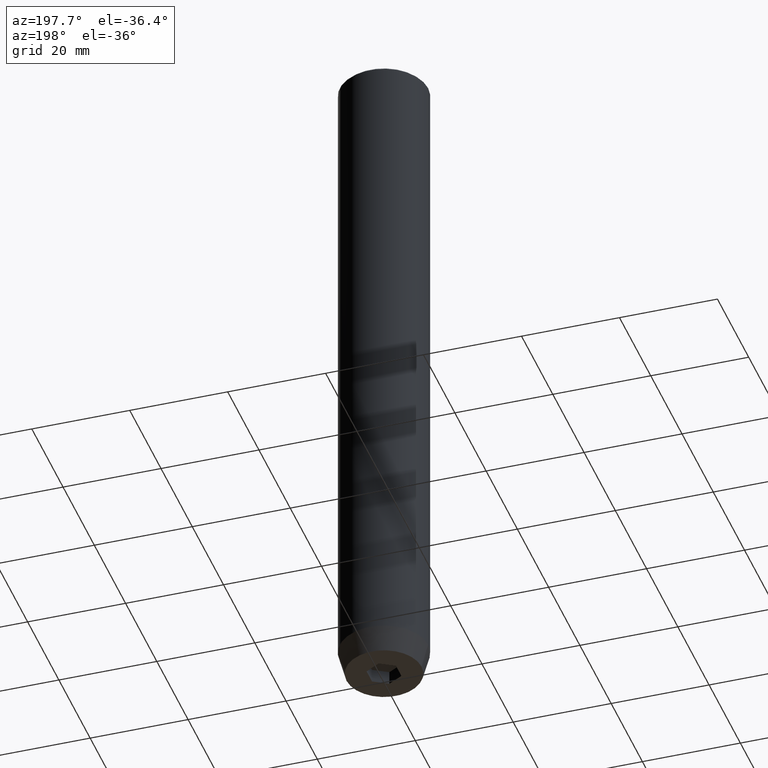
[diagram: clean part render]
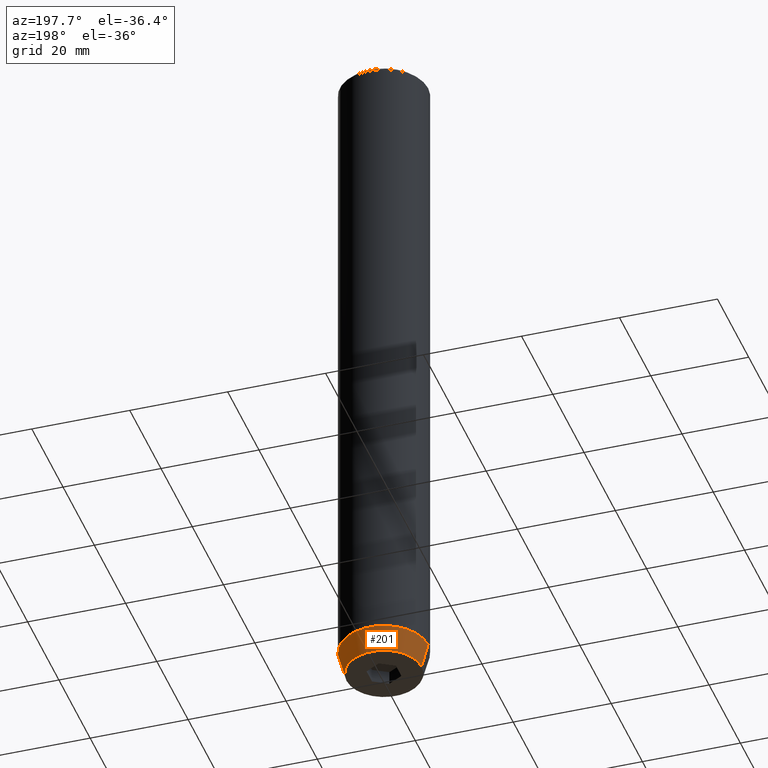
[diagram: same view with one face highlighted and labeled with its STEP entity id]
A machine part, auxiliary view. The second image highlights one B-rep face of the part: STEP entity #201.
In plain terms, the highlighted conical surface has half-angle 15 deg.
Its self-contained STEP definition (entity closure, byte-faithful):
#96 = CARTESIAN_POINT ( 'NONE',  ( -7.660254037844381969, 1.020146339021394469E-15, -140.0000000000000000 ) ) ;
#99 = CARTESIAN_POINT ( 'NONE',  ( -9.000000000000000000, 1.102182119232617714E-15, -135.0000000000000000 ) ) ;
#108 = CIRCLE ( 'NONE', #463, 7.660254037844381969 ) ;
#110 = VECTOR ( 'NONE', #327, 1000.000000000000114 ) ;
#115 = LINE ( 'NONE', #284, #372 ) ;
#151 = CARTESIAN_POINT ( 'NONE',  ( 0.000000000000000000, 0.000000000000000000, -135.0000000000000000 ) ) ;
#156 = LINE ( 'NONE', #518, #110 ) ;
#191 = DIRECTION ( 'NONE',  ( 1.000000000000000000, 0.000000000000000000, 0.000000000000000000 ) ) ;
#200 = VERTEX_POINT ( 'NONE', #96 ) ;
#201 = ADVANCED_FACE ( 'NONE', ( #539 ), #305, .T. ) ;
#229 = VERTEX_POINT ( 'NONE', #278 ) ;
#236 = DIRECTION ( 'NONE',  ( 0.2588190451025211836, 0.000000000000000000, 0.9659258262890680902 ) ) ;
#266 = EDGE_CURVE ( 'NONE', #578, #200, #108, .T. ) ;
#270 = VERTEX_POINT ( 'NONE', #99 ) ;
#273 = EDGE_LOOP ( 'NONE', ( #582, #371, #566, #530 ) ) ;
#278 = CARTESIAN_POINT ( 'NONE',  ( 9.000000000000000000, 0.000000000000000000, -135.0000000000000000 ) ) ;
#282 = EDGE_CURVE ( 'NONE', #229, #270, #573, .T. ) ;
#284 = CARTESIAN_POINT ( 'NONE',  ( 9.000000000000000000, 0.000000000000000000, -135.0000000000000000 ) ) ;
#305 = CONICAL_SURFACE ( 'NONE', #425, 9.000000000000000000, 0.2617993877991499074 ) ;
#312 = CARTESIAN_POINT ( 'NONE',  ( 0.000000000000000000, 0.000000000000000000, -140.0000000000000000 ) ) ;
#317 = CARTESIAN_POINT ( 'NONE',  ( 0.000000000000000000, 0.000000000000000000, -135.0000000000000000 ) ) ;
#327 = DIRECTION ( 'NONE',  ( -0.2588190451025211836, 3.169619151431770488E-17, 0.9659258262890680902 ) ) ;
#330 = EDGE_CURVE ( 'NONE', #578, #229, #115, .T. ) ;
#332 = DIRECTION ( 'NONE',  ( -0.000000000000000000, -0.000000000000000000, 1.000000000000000000 ) ) ;
#338 = EDGE_CURVE ( 'NONE', #200, #270, #156, .T. ) ;
#371 = ORIENTED_EDGE ( 'NONE', *, *, #338, .T. ) ;
#372 = VECTOR ( 'NONE', #236, 1000.000000000000114 ) ;
#374 = DIRECTION ( 'NONE',  ( -0.000000000000000000, -0.000000000000000000, 1.000000000000000000 ) ) ;
#425 = AXIS2_PLACEMENT_3D ( 'NONE', #317, #374, #191 ) ;
#435 = DIRECTION ( 'NONE',  ( 1.000000000000000000, 0.000000000000000000, 0.000000000000000000 ) ) ;
#463 = AXIS2_PLACEMENT_3D ( 'NONE', #312, #491, #587 ) ;
#480 = CARTESIAN_POINT ( 'NONE',  ( 7.660254037844381969, 0.000000000000000000, -140.0000000000000000 ) ) ;
#491 = DIRECTION ( 'NONE',  ( -0.000000000000000000, -0.000000000000000000, 1.000000000000000000 ) ) ;
#518 = CARTESIAN_POINT ( 'NONE',  ( -9.000000000000000000, 1.102182119232617714E-15, -135.0000000000000000 ) ) ;
#530 = ORIENTED_EDGE ( 'NONE', *, *, #330, .F. ) ;
#539 = FACE_OUTER_BOUND ( 'NONE', #273, .T. ) ;
#553 = AXIS2_PLACEMENT_3D ( 'NONE', #151, #332, #435 ) ;
#566 = ORIENTED_EDGE ( 'NONE', *, *, #282, .F. ) ;
#573 = CIRCLE ( 'NONE', #553, 9.000000000000000000 ) ;
#578 = VERTEX_POINT ( 'NONE', #480 ) ;
#582 = ORIENTED_EDGE ( 'NONE', *, *, #266, .T. ) ;
#587 = DIRECTION ( 'NONE',  ( 1.000000000000000000, 0.000000000000000000, 0.000000000000000000 ) ) ;